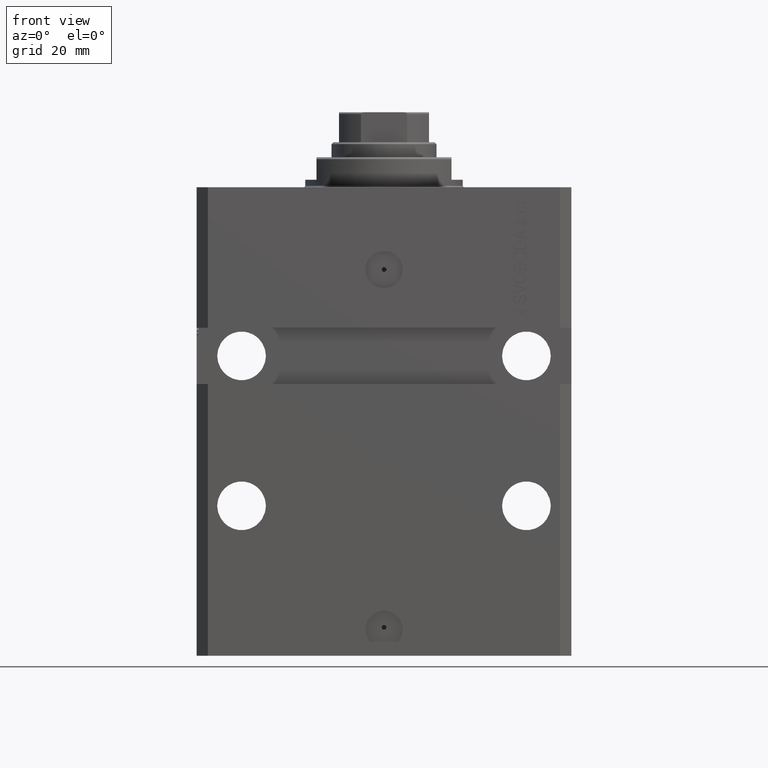
[diagram: clean part render]
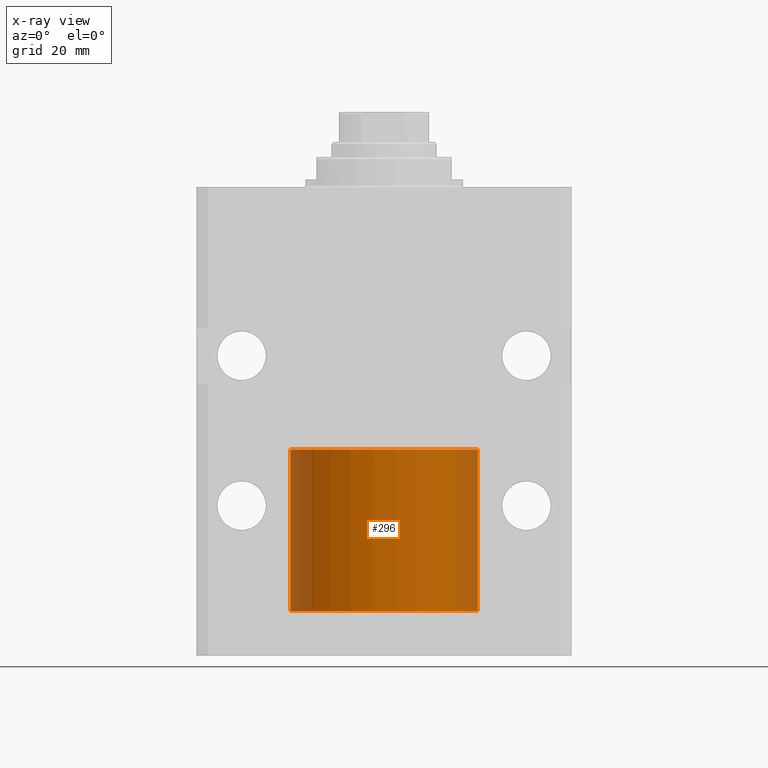
[diagram: x-ray — body ghosted, one internal face saturated and labeled with its STEP entity id]
A machine part, front view, then the same camera in x-ray: the body is ghosted and one INTERNAL B-rep face — a face not visible from any outside direction — is saturated and labeled: STEP entity #296.
In plain terms, the highlighted cylindrical surface (partial cylindrical patch) has radius 25 mm, axis along (-0, -0, -1).
Its self-contained STEP definition (entity closure, byte-faithful):
#229 = CIRCLE ( 'NONE', #6462, 25.00000000000000000 ) ;
#296 = ADVANCED_FACE ( 'NONE', ( #12829 ), #16971, .T. ) ;
#4723 = AXIS2_PLACEMENT_3D ( 'NONE', #30218, #34569, #8515 ) ;
#5518 = CARTESIAN_POINT ( 'NONE',  ( 0.000000000000000000, 0.000000000000000000, 43.10000000000000142 ) ) ;
#6462 = AXIS2_PLACEMENT_3D ( 'NONE', #20039, #12007, #38794 ) ;
#8515 = DIRECTION ( 'NONE',  ( 1.000000000000000000, 0.000000000000000000, 0.000000000000000000 ) ) ;
#9157 = AXIS2_PLACEMENT_3D ( 'NONE', #5518, #16247, #31841 ) ;
#10524 = VERTEX_POINT ( 'NONE', #29394 ) ;
#12007 = DIRECTION ( 'NONE',  ( 0.000000000000000000, 0.000000000000000000, 1.000000000000000000 ) ) ;
#12829 = FACE_OUTER_BOUND ( 'NONE', #33670, .T. ) ;
#14849 = CIRCLE ( 'NONE', #4723, 25.00000000000000000 ) ;
#16128 = CARTESIAN_POINT ( 'NONE',  ( 25.00000000000000000, 3.061616997868383043E-15, 0.000000000000000000 ) ) ;
#16247 = DIRECTION ( 'NONE',  ( -0.000000000000000000, -0.000000000000000000, -1.000000000000000000 ) ) ;
#16971 = CYLINDRICAL_SURFACE ( 'NONE', #9157, 25.00000000000000000 ) ;
#20039 = CARTESIAN_POINT ( 'NONE',  ( 0.000000000000000000, 0.000000000000000000, 43.10000000000000142 ) ) ;
#22055 = EDGE_CURVE ( 'NONE', #27159, #25394, #14849, .T. ) ;
#23756 = EDGE_CURVE ( 'NONE', #47151, #27159, #42044, .T. ) ;
#25021 = VECTOR ( 'NONE', #45686, 1000.000000000000000 ) ;
#25117 = DIRECTION ( 'NONE',  ( -0.000000000000000000, -0.000000000000000000, -1.000000000000000000 ) ) ;
#25394 = VERTEX_POINT ( 'NONE', #16128 ) ;
#27005 = EDGE_CURVE ( 'NONE', #47151, #10524, #229, .T. ) ;
#27159 = VERTEX_POINT ( 'NONE', #47545 ) ;
#28407 = VECTOR ( 'NONE', #25117, 1000.000000000000000 ) ;
#29394 = CARTESIAN_POINT ( 'NONE',  ( 25.00000000000000000, 3.061616997868383043E-15, 43.10000000000000142 ) ) ;
#30218 = CARTESIAN_POINT ( 'NONE',  ( 0.000000000000000000, 0.000000000000000000, 0.000000000000000000 ) ) ;
#31841 = DIRECTION ( 'NONE',  ( -1.000000000000000000, 0.000000000000000000, 0.000000000000000000 ) ) ;
#33670 = EDGE_LOOP ( 'NONE', ( #38994, #43652, #35212, #43728 ) ) ;
#34569 = DIRECTION ( 'NONE',  ( 0.000000000000000000, 0.000000000000000000, 1.000000000000000000 ) ) ;
#35212 = ORIENTED_EDGE ( 'NONE', *, *, #23756, .T. ) ;
#35723 = EDGE_CURVE ( 'NONE', #10524, #25394, #42893, .T. ) ;
#38391 = CARTESIAN_POINT ( 'NONE',  ( -25.00000000000000000, 0.000000000000000000, 43.10000000000000142 ) ) ;
#38794 = DIRECTION ( 'NONE',  ( 1.000000000000000000, 0.000000000000000000, 0.000000000000000000 ) ) ;
#38994 = ORIENTED_EDGE ( 'NONE', *, *, #35723, .F. ) ;
#42044 = LINE ( 'NONE', #43184, #25021 ) ;
#42893 = LINE ( 'NONE', #43848, #28407 ) ;
#43184 = CARTESIAN_POINT ( 'NONE',  ( -25.00000000000000000, 0.000000000000000000, 43.10000000000000142 ) ) ;
#43652 = ORIENTED_EDGE ( 'NONE', *, *, #27005, .F. ) ;
#43728 = ORIENTED_EDGE ( 'NONE', *, *, #22055, .T. ) ;
#43848 = CARTESIAN_POINT ( 'NONE',  ( 25.00000000000000000, 3.061616997868383043E-15, 43.10000000000000142 ) ) ;
#45686 = DIRECTION ( 'NONE',  ( -0.000000000000000000, -0.000000000000000000, -1.000000000000000000 ) ) ;
#47151 = VERTEX_POINT ( 'NONE', #38391 ) ;
#47545 = CARTESIAN_POINT ( 'NONE',  ( -25.00000000000000000, 0.000000000000000000, 0.000000000000000000 ) ) ;